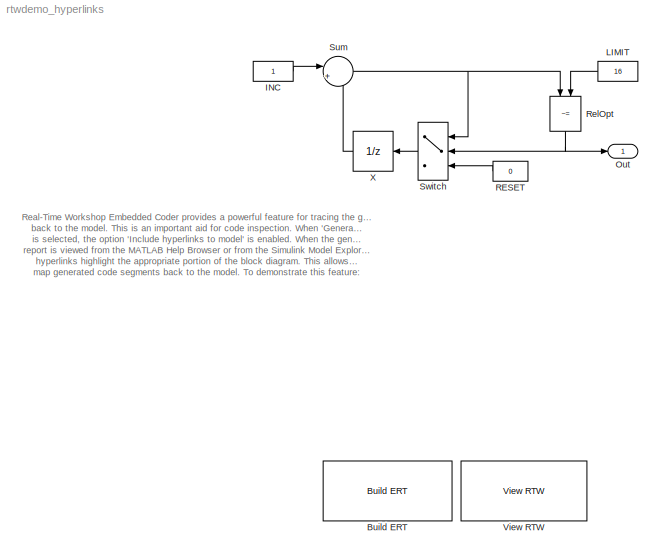
MODEL rtwdemo_hyperlinks
KIND model
BLOCK [Reference] Build ERT  REF=rtwdemowidgets/Build ERT
  Ports = []
  ShowPortLabels = on
  SourceBlock = rtwdemowidgets/Build ERT
  attrib_overrides = {}
BLOCK [Constant] INC
  OutDataTypeMode = uint8
BLOCK [Constant] LIMIT
  OutDataTypeMode = uint8
  Value = 16
BLOCK [Outport] Out
  BusOutputAsStruct = off
  IconDisplay = Port number
BLOCK [Constant] RESET
  OutDataTypeMode = uint8
  Value = 0
BLOCK [RelationalOperator] RelOpt
  Operator = ~=
BLOCK [Sum] Sum
  IconShape = round
  Inputs = |++
  Ports = [2, 1]
  SaturateOnIntegerOverflow = off
BLOCK [Switch] Switch
  Threshold = .5
BLOCK [Reference] View RTW  REF=rtwdemowidgets/View RTW
  Ports = []
  ShowPortLabels = on
  SourceBlock = rtwdemowidgets/View RTW
BLOCK [UnitDelay] X
  StateIdentifier = X
ANNOTATION (root): Real-Time Workshop Embedded Coder provides a powerful feature for tracing the generated code\nback to the model. This is an important aid for code inspection. When 'Generate HTML report'\nis selected, the option 'Include hyperlinks to model' is enabled. When the generated HTML\nreport is viewed from the MATLAB Help Browser or from the Simulink Model Explorer (PC only),\nhyperlinks highlight the ap...<+670ch>
LINE INC:1 -> Sum:1
LINE LIMIT:1 -> RelOpt:2
LINE RESET:1 -> Switch:3
NET RelOpt:1 -> Out:1, Switch:2
NET Sum:1 -> RelOpt:1, Switch:1
LINE Switch:1 -> X:1
LINE X:1 -> Sum:2
note: NET lines group one-source signal fan-out (src -> all destinations, sorted); 1:1 wires keep LINE
